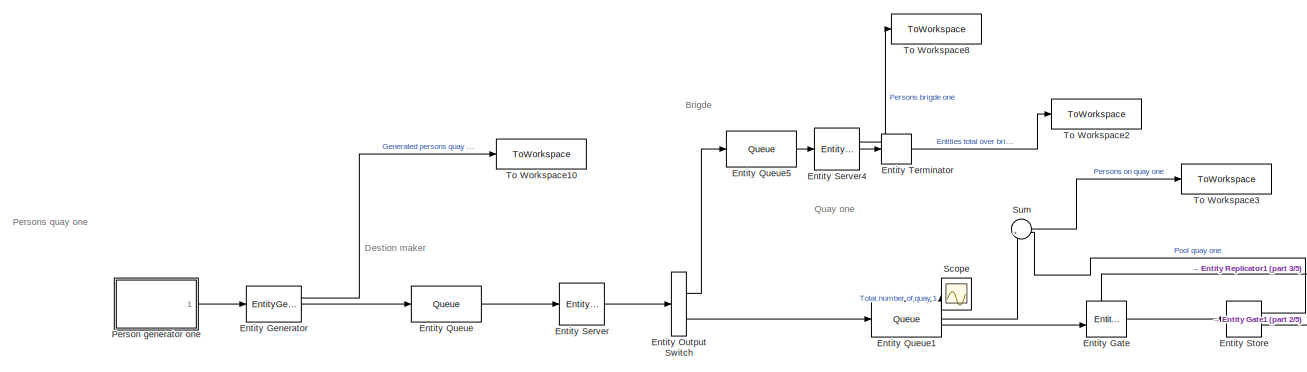
[diagram: root canvas - part 1/5, top left region]
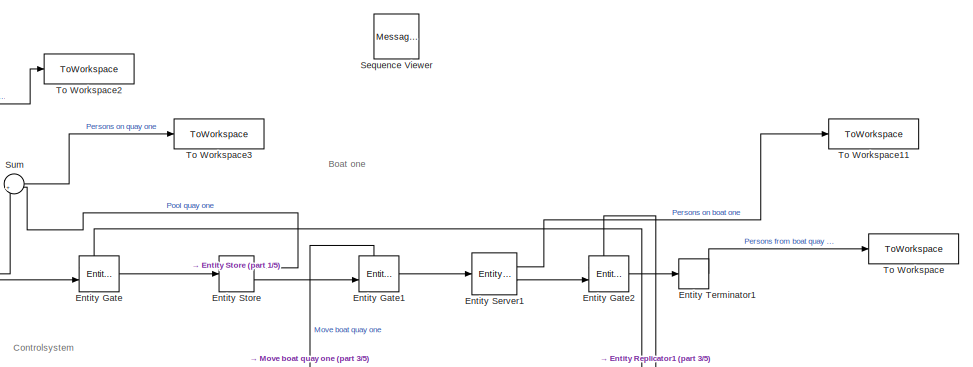
[diagram: root canvas - part 2/5, top right region]
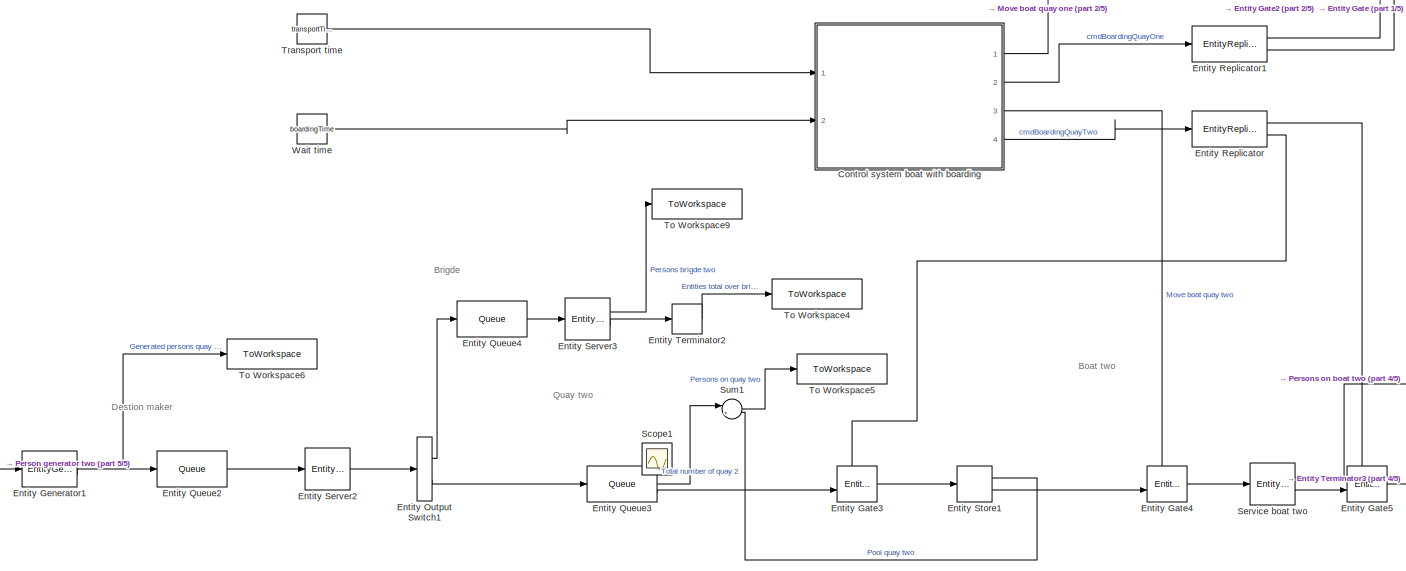
[diagram: root canvas - part 3/5, bottom center region]
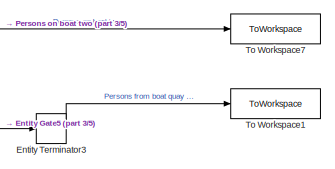
[diagram: root canvas - part 4/5, bottom right region]
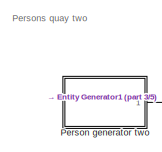
[diagram: root canvas - part 5/5, bottom left region]
MODEL slx_62985c9cc9a4
KIND model
CONFIG AbsTol = auto
CONFIG EnableMultiTasking = off
CONFIG FixedStep = auto
CONFIG MaxStep = auto
CONFIG MinStep = auto
CONFIG RelTol = 1e-3
CONFIG SampleTimeConstraint = Unconstrained
CONFIG Solver = VariableStepAuto
CONFIG SolverName = VariableStepAuto
CONFIG StartTime = 0.0
CONFIG StopTime = 600
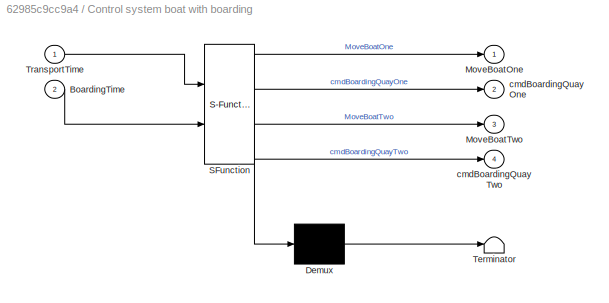
BLOCK [SubSystem] Control system boat with boarding
  ErrorFcn = Stateflow.Translate.translate
  PermitHierarchicalResolution = ExplicitOnly
  Ports = [2, 4]
  RequestExecContextInheritance = off
  SFBlockType = Chart
  TreatAsAtomicUnit = on
BLOCK [Demux] Control system boat with boarding/ Demux 
  Outputs = 1
  Ports = [1, 1]
BLOCK [S-Function] Control system boat with boarding/ SFunction 
  EnableBusSupport = on
  FunctionName = sf_sfun
  OutputPortMessageModes = n,m,m,m,m
  PortCounts = [2 5]
  Ports = [2, 5]
  SFcnIsStateOwnerBlock = off
  SFunctionDeploymentMode = off
  Tag = Stateflow S-Function 7
BLOCK [Terminator] Control system boat with boarding/ Terminator 
BLOCK [Inport] Control system boat with boarding/BoardingTime
  IconDisplay = Port number
  Port = 2
BLOCK [Outport] Control system boat with boarding/MoveBoatOne
  IconDisplay = Port number
BLOCK [Outport] Control system boat with boarding/MoveBoatTwo
  IconDisplay = Port number
  Port = 3
BLOCK [Inport] Control system boat with boarding/TransportTime
  IconDisplay = Port number
BLOCK [Outport] Control system boat with boarding/cmdBoardingQuayOne
  IconDisplay = Port number
  Port = 2
BLOCK [Outport] Control system boat with boarding/cmdBoardingQuayTwo
  IconDisplay = Port number
  Port = 4
BLOCK [EntityGate] Entity Gate
  InputPortMap = u0,u1
  InputPortMessageModes = m,m
  OutputPortMap = o0
  OutputPortMessageModes = m
  Ports = [2, 1]
BLOCK [EntityGate] Entity Gate1
  InputPortMap = u0,u1
  InputPortMessageModes = m,m
  OutputPortMap = o0
  OutputPortMessageModes = m
  Ports = [2, 1]
BLOCK [EntityGate] Entity Gate2
  InputPortMap = u0,u1
  InputPortMessageModes = m,m
  OutputPortMap = o0
  OutputPortMessageModes = m
  Ports = [2, 1]
BLOCK [EntityGate] Entity Gate3
  InputPortMap = u0,u1
  InputPortMessageModes = m,m
  OutputPortMap = o0
  OutputPortMessageModes = m
  Ports = [2, 1]
BLOCK [EntityGate] Entity Gate4
  InputPortMap = u0,u1
  InputPortMessageModes = m,m
  OutputPortMap = o0
  OutputPortMessageModes = m
  Ports = [2, 1]
BLOCK [EntityGate] Entity Gate5
  InputPortMap = u0,u1
  InputPortMessageModes = m,m
  OutputPortMap = o0
  OutputPortMessageModes = m
  Ports = [2, 1]
BLOCK [EntityGenerator] Entity Generator
  AttributeInitialValue = -1|-1
  AttributeName = destion|route
  EntityType = Structured
  EntityTypeName = person
  GenerationMethod = Event-based
  InputPortMap = u0
  InputPortMessageModes = m
  NumberEntitiesDeparted = on
  OutputPortMap = o0,o3
  OutputPortMessageModes = n,m
  Ports = [1, 2]
BLOCK [EntityGenerator] Entity Generator1
  AttributeInitialValue = -1|-1
  AttributeName = destion|route
  EntityType = Structured
  EntityTypeName = person2
  GenerationMethod = Event-based
  InputPortMap = u0
  InputPortMessageModes = m
  NumberEntitiesDeparted = on
  OutputPortMap = o0,o3
  OutputPortMessageModes = n,m
  Ports = [1, 2]
BLOCK [EntityOutputSwitch] Entity Output Switch
  InputPortMap = u1
  InputPortMessageModes = m
  OutputPortMap = o0,o1
  OutputPortMessageModes = m,m
  Ports = [1, 2]
  SwitchAttributeName = route
  SwitchingCriterion = From attribute
BLOCK [EntityOutputSwitch] Entity Output Switch1
  InputPortMap = u1
  InputPortMessageModes = m
  OutputPortMap = o0,o1
  OutputPortMessageModes = m,m
  Ports = [1, 2]
  SwitchAttributeName = route
  SwitchingCriterion = From attribute
BLOCK [Queue] Entity Queue
  Capacity = inf
  InputPortMap = u0
  InputPortMessageModes = m
  OutputPortMap = o5
  OutputPortMessageModes = m
  Ports = [1, 1]
BLOCK [Queue] Entity Queue1
  Capacity = inf
  InputPortMap = u0
  InputPortMessageModes = m
  NumberEntitiesDeparted = on
  NumberEntitiesInBlock = on
  OutputPortMap = o0,o1,o5
  OutputPortMessageModes = n,n,m
  Ports = [1, 3]
BLOCK [Queue] Entity Queue2
  Capacity = inf
  InputPortMap = u0
  InputPortMessageModes = m
  OutputPortMap = o5
  OutputPortMessageModes = m
  Ports = [1, 1]
BLOCK [Queue] Entity Queue3
  Capacity = inf
  InputPortMap = u0
  InputPortMessageModes = m
  NumberEntitiesDeparted = on
  NumberEntitiesInBlock = on
  OutputPortMap = o0,o1,o5
  OutputPortMessageModes = n,n,m
  Ports = [1, 3]
BLOCK [Queue] Entity Queue4
  Capacity = inf
  InputPortMap = u0
  InputPortMessageModes = m
  OutputPortMap = o5
  OutputPortMessageModes = m
  Ports = [1, 1]
BLOCK [Queue] Entity Queue5
  Capacity = inf
  InputPortMap = u0
  InputPortMessageModes = m
  OutputPortMap = o5
  OutputPortMessageModes = m
  Ports = [1, 1]
BLOCK [EntityReplicator] Entity Replicator
  InputPortMap = u0
  InputPortMessageModes = m
  OutputPortMap = o0,o1
  OutputPortMessageModes = m,m
  Ports = [1, 2]
BLOCK [EntityReplicator] Entity Replicator1
  InputPortMap = u0
  InputPortMessageModes = m
  OutputPortMap = o0,o1
  OutputPortMessageModes = m,m
  Ports = [1, 2]
BLOCK [EntityServer] Entity Server
  Capacity = inf
  EntryAction = destion = 0.659;\nentity.destion = rand();\n\nif entity.destion >= destion\n    entity.route = 1;\nelse\n    entity.route = 2;\nend
  InputPortMap = u2
  InputPortMessageModes = m
  OutputPortMap = o9
  OutputPortMessageModes = m
  Ports = [1, 1]
  ServiceTimeValue = 0
BLOCK [EntityServer] Entity Server1
  Capacity = maxPersonBoat
  InputPortMap = u2
  InputPortMessageModes = m
  NumberEntitiesInBlock = on
  OutputPortMap = o1,o9
  OutputPortMessageModes = n,m
  Ports = [1, 2]
  ServiceTimeValue = transportTime
BLOCK [EntityServer] Entity Server2
  Capacity = inf
  EntryAction = destion = 0.659;\nentity.destion = rand();\n\nif entity.destion >= destion\n    entity.route = 1;\nelse\n    entity.route = 2;\nend
  InputPortMap = u2
  InputPortMessageModes = m
  OutputPortMap = o9
  OutputPortMessageModes = m
  Ports = [1, 1]
  ServiceTimeValue = 0
BLOCK [EntityServer] Entity Server3
  Capacity = inf
  InputPortMap = u2
  InputPortMessageModes = m
  NumberEntitiesInBlock = on
  OutputPortMap = o1,o9
  OutputPortMessageModes = n,m
  Ports = [1, 2]
  ServiceTimeValue = transportTimeBrigde
BLOCK [EntityServer] Entity Server4
  Capacity = inf
  InputPortMap = u2
  InputPortMessageModes = m
  NumberEntitiesInBlock = on
  OutputPortMap = o1,o9
  OutputPortMessageModes = n,m
  Ports = [1, 2]
  ServiceTimeValue = transportTimeBrigde
BLOCK [EntityStore] Entity Store
  Capacity = maxPersonBoat
  InputPortMap = u0
  InputPortMessageModes = m
  NumberEntitiesInBlock = on
  OutputPortMap = o1,o4
  OutputPortMessageModes = n,m
  Ports = [1, 2]
BLOCK [EntityStore] Entity Store1
  Capacity = maxPersonBoat
  InputPortMap = u0
  InputPortMessageModes = m
  NumberEntitiesInBlock = on
  OutputPortMap = o1,o4
  OutputPortMessageModes = n,m
  Ports = [1, 2]
BLOCK [EntityTerminator] Entity Terminator
  InputPortMap = u0
  InputPortMessageModes = m
  NumberEntitiesArrived = on
  OutputPortMap = o0
  Ports = [1, 1]
BLOCK [EntityTerminator] Entity Terminator1
  InputPortMap = u0
  InputPortMessageModes = m
  NumberEntitiesArrived = on
  OutputPortMap = o0
  Ports = [1, 1]
BLOCK [EntityTerminator] Entity Terminator2
  InputPortMap = u0
  InputPortMessageModes = m
  NumberEntitiesArrived = on
  OutputPortMap = o0
  Ports = [1, 1]
BLOCK [EntityTerminator] Entity Terminator3
  InputPortMap = u0
  InputPortMessageModes = m
  NumberEntitiesArrived = on
  OutputPortMap = o0
  Ports = [1, 1]
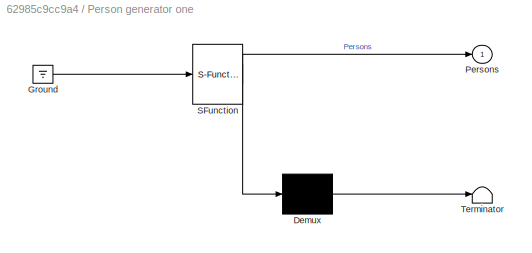
BLOCK [SubSystem] Person generator one
  ErrorFcn = Stateflow.Translate.translate
  PermitHierarchicalResolution = ExplicitOnly
  Ports = [0, 1]
  RequestExecContextInheritance = off
  SFBlockType = Chart
  TreatAsAtomicUnit = on
BLOCK [Demux] Person generator one/ Demux 
  Outputs = 1
  Ports = [1, 1]
BLOCK [Ground] Person generator one/ Ground 
BLOCK [S-Function] Person generator one/ SFunction 
  EnableBusSupport = on
  FunctionName = sf_sfun
  OutputPortMessageModes = n,m
  PortCounts = [1 2]
  Ports = [1, 2]
  SFcnIsStateOwnerBlock = off
  SFunctionDeploymentMode = off
  Tag = Stateflow S-Function 1
BLOCK [Terminator] Person generator one/ Terminator 
BLOCK [Outport] Person generator one/Persons
  IconDisplay = Port number
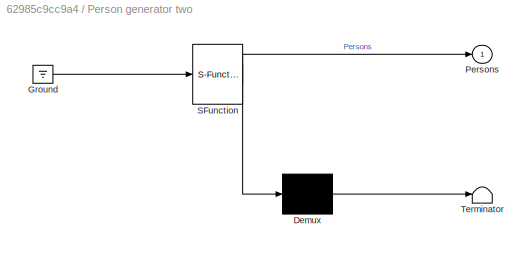
BLOCK [SubSystem] Person generator two
  ErrorFcn = Stateflow.Translate.translate
  PermitHierarchicalResolution = ExplicitOnly
  Ports = [0, 1]
  RequestExecContextInheritance = off
  SFBlockType = Chart
  TreatAsAtomicUnit = on
BLOCK [Demux] Person generator two/ Demux 
  Outputs = 1
  Ports = [1, 1]
BLOCK [Ground] Person generator two/ Ground 
BLOCK [S-Function] Person generator two/ SFunction 
  EnableBusSupport = on
  FunctionName = sf_sfun
  OutputPortMessageModes = n,m
  PortCounts = [1 2]
  Ports = [1, 2]
  SFcnIsStateOwnerBlock = off
  SFunctionDeploymentMode = off
  Tag = Stateflow S-Function 2
BLOCK [Terminator] Person generator two/ Terminator 
BLOCK [Outport] Person generator two/Persons
  IconDisplay = Port number
BLOCK [Scope] Scope
  Floating = off
  NumInputPorts = 1
  Ports = [1]
  ScopeSpecificationString = Simulink.scopes.TimeScopeBlockCfg('CurrentConfiguration', extmgr.ConfigurationSet(extmgr.Configuration('Core','General UI',true),extmgr.Configuration('Core','Source UI',true),extmgr.Configuration('Sources','WiredSimulink',true),extmgr.Configuration('Visuals','Time Domain',true,'SerializedDisplays',{struct('MinYLimReal','-3.375','MaxYLimReal','40.375','YLabelReal','','MinYLimMag','0.00000','MaxYLim...<+1334ch>
BLOCK [Scope] Scope1
  Floating = off
  NumInputPorts = 1
  Ports = [1]
  ScopeSpecificationString = Simulink.scopes.TimeScopeBlockCfg('CurrentConfiguration', extmgr.ConfigurationSet(extmgr.Configuration('Core','General UI',true),extmgr.Configuration('Core','Source UI',true),extmgr.Configuration('Sources','WiredSimulink',true,'DataLoggingVariableName','ScopeData1'),extmgr.Configuration('Visuals','Time Domain',true,'SerializedDisplays',{struct('MinYLimReal','0.00000','MaxYLimReal','10.00000','YLab...<+1383ch>
BLOCK [MessageViewer] Sequence Viewer
BLOCK [EntityServer] Service boat two
  Capacity = maxPersonBoat
  InputPortMap = u2
  InputPortMessageModes = m
  NumberEntitiesInBlock = on
  OutputPortMap = o1,o9
  OutputPortMessageModes = n,m
  Ports = [1, 2]
  ServiceTimeValue = transportTime
BLOCK [Sum] Sum
  IconShape = round
  InputSameDT = off
  Inputs = |++
  OutDataTypeStr = Inherit: Inherit via internal rule
  Ports = [2, 1]
  SaturateOnIntegerOverflow = off
BLOCK [Sum] Sum1
  IconShape = round
  InputSameDT = off
  Inputs = |++
  OutDataTypeStr = Inherit: Inherit via internal rule
  Ports = [2, 1]
  SaturateOnIntegerOverflow = off
BLOCK [ToWorkspace] To Workspace
  FixptAsFi = on
  MaxDataPoints = inf
  Ports = [1]
  SampleTime = -1
  SaveFormat = Timeseries
  VariableName = totbaat1
BLOCK [ToWorkspace] To Workspace1
  FixptAsFi = on
  MaxDataPoints = inf
  Ports = [1]
  SampleTime = -1
  SaveFormat = Timeseries
  VariableName = totbaat2
BLOCK [ToWorkspace] To Workspace10
  FixptAsFi = on
  MaxDataPoints = inf
  Ports = [1]
  SampleTime = -1
  SaveFormat = Timeseries
  VariableName = simout10
BLOCK [ToWorkspace] To Workspace11
  FixptAsFi = on
  MaxDataPoints = inf
  Ports = [1]
  SampleTime = -1
  SaveFormat = Timeseries
  VariableName = baat
BLOCK [ToWorkspace] To Workspace2
  FixptAsFi = on
  MaxDataPoints = inf
  Ports = [1]
  SampleTime = -1
  SaveFormat = Timeseries
  VariableName = totbro
BLOCK [ToWorkspace] To Workspace3
  FixptAsFi = on
  MaxDataPoints = inf
  Ports = [1]
  SampleTime = -1
  SaveFormat = Timeseries
  VariableName = kai
BLOCK [ToWorkspace] To Workspace4
  FixptAsFi = on
  MaxDataPoints = inf
  Ports = [1]
  SampleTime = -1
  SaveFormat = Timeseries
  VariableName = totbro1
BLOCK [ToWorkspace] To Workspace5
  FixptAsFi = on
  MaxDataPoints = inf
  Ports = [1]
  SampleTime = -1
  SaveFormat = Timeseries
  VariableName = kai2
BLOCK [ToWorkspace] To Workspace6
  FixptAsFi = on
  MaxDataPoints = inf
  Ports = [1]
  SampleTime = -1
  SaveFormat = Timeseries
  VariableName = simout6
BLOCK [ToWorkspace] To Workspace7
  FixptAsFi = on
  MaxDataPoints = inf
  Ports = [1]
  SampleTime = -1
  SaveFormat = Timeseries
  VariableName = baat1
BLOCK [ToWorkspace] To Workspace8
  FixptAsFi = on
  MaxDataPoints = inf
  Ports = [1]
  SampleTime = -1
  SaveFormat = Timeseries
  VariableName = bro
BLOCK [ToWorkspace] To Workspace9
  FixptAsFi = on
  MaxDataPoints = inf
  Ports = [1]
  SampleTime = -1
  SaveFormat = Timeseries
  VariableName = bro1
BLOCK [Constant] Transport time
  Value = transportTime
BLOCK [Constant] Wait time
  Value = boardingTime
ANNOTATION (root): Boat one
ANNOTATION (root): Boat two
ANNOTATION (root): Brigde
ANNOTATION (root): Controlsystem
ANNOTATION (root): Destion maker
ANNOTATION (root): Persons quay one
ANNOTATION (root): Persons quay two
ANNOTATION (root): Quay one
ANNOTATION (root): Quay two
LINE Control system boat with boarding:1 -> Entity Gate1:1
LINE Control system boat with boarding:2 -> Entity Replicator1:1
LINE Control system boat with boarding:3 -> Entity Gate4:1
LINE Control system boat with boarding:4 -> Entity Replicator:1
LINE Entity Gate1:1 -> Entity Server1:1
LINE Entity Gate2:1 -> Entity Terminator1:1
LINE Entity Gate3:1 -> Entity Store1:1
LINE Entity Gate4:1 -> Service boat two:1
LINE Entity Gate5:1 -> Entity Terminator3:1
LINE Entity Gate:1 -> Entity Store:1
LINE Entity Generator1:1 -> To Workspace6:1
LINE Entity Generator1:2 -> Entity Queue2:1
LINE Entity Generator:1 -> To Workspace10:1
LINE Entity Generator:2 -> Entity Queue:1
LINE Entity Output Switch1:1 -> Entity Queue4:1
LINE Entity Output Switch1:2 -> Entity Queue3:1
LINE Entity Output Switch:1 -> Entity Queue5:1
LINE Entity Output Switch:2 -> Entity Queue1:1
LINE Entity Queue1:1 -> Scope:1
LINE Entity Queue1:2 -> Sum:1
LINE Entity Queue1:3 -> Entity Gate:2
LINE Entity Queue2:1 -> Entity Server2:1
LINE Entity Queue3:1 -> Scope1:1
LINE Entity Queue3:2 -> Sum1:1
LINE Entity Queue3:3 -> Entity Gate3:2
LINE Entity Queue4:1 -> Entity Server3:1
LINE Entity Queue5:1 -> Entity Server4:1
LINE Entity Queue:1 -> Entity Server:1
LINE Entity Replicator1:1 -> Entity Gate:1
LINE Entity Replicator1:2 -> Entity Gate2:1
LINE Entity Replicator:1 -> Entity Gate5:1
LINE Entity Replicator:2 -> Entity Gate3:1
LINE Entity Server1:1 -> To Workspace11:1
LINE Entity Server1:2 -> Entity Gate2:2
LINE Entity Server2:1 -> Entity Output Switch1:1
LINE Entity Server3:1 -> To Workspace9:1
LINE Entity Server3:2 -> Entity Terminator2:1
LINE Entity Server4:1 -> To Workspace8:1
LINE Entity Server4:2 -> Entity Terminator:1
LINE Entity Server:1 -> Entity Output Switch:1
LINE Entity Store1:1 -> Sum1:2
LINE Entity Store1:2 -> Entity Gate4:2
LINE Entity Store:1 -> Sum:2
LINE Entity Store:2 -> Entity Gate1:2
LINE Entity Terminator1:1 -> To Workspace:1
LINE Entity Terminator2:1 -> To Workspace4:1
LINE Entity Terminator3:1 -> To Workspace1:1
LINE Entity Terminator:1 -> To Workspace2:1
LINE Person generator one:1 -> Entity Generator:1
LINE Person generator two:1 -> Entity Generator1:1
LINE Service boat two:1 -> To Workspace7:1
LINE Service boat two:2 -> Entity Gate5:2
LINE Sum1:1 -> To Workspace5:1
LINE Sum:1 -> To Workspace3:1
LINE Transport time:1 -> Control system boat with boarding:1
LINE Wait time:1 -> Control system boat with boarding:2
CHART Person generator one states=312 transitions=409
  STATE_LABEL 'Hour_24'
  STATE_LABEL 'min_0\n\n'
  STATE_LABEL 'IDLE\nentry:\n  lambda = 4;\n  dt =60* rand();\n  Persons.data=poissrnd(lambda);'
  STATE_LABEL 'Wait'
  STATE_LABEL 'after(dt,sec){send(Persons)}'
  STATE_LABEL 'min_45\n\n'
  STATE_LABEL 'IDLE\nentry:\n  lambda = 4;\n  dt =60* rand();\n  Persons.data=poissrnd(lambda);'
  STATE_LABEL 'Wait'
  STATE_LABEL '{dt=0;}'
  STATE_LABEL 'after(dt,sec){send(Persons)}'
  STATE_LABEL 'min_15\n\n'
  STATE_LABEL 'IDLE\nentry:\n  lambda = 4;\n  dt =60* rand();\n  Persons.data=poissrnd(lambda);'
  STATE_LABEL 'Wait'
  STATE_LABEL '{dt=0;}'
  STATE_LABEL 'after(dt,sec){send(Persons)}'
  STATE_LABEL 'min_30\n\n'
  STATE_LABEL 'IDLE\nentry:\n  lambda = 4;\n  dt =60* rand();\n  Persons.data=poissrnd(lambda);'
  STATE_LABEL 'Wait'
  STATE_LABEL '{dt=0;}'
  STATE_LABEL 'after(dt,sec){send(Persons)}'
  STATE_LABEL 'after(60*15,sec)'
  STATE_LABEL 'after(60*15,sec)'
  STATE_LABEL 'after(60*15,sec)'
  STATE_LABEL 'min_0\n\n'
  STATE_LABEL 'IDLE\nentry:\n  lambda = 4;\n  dt =60* rand();\n  Persons.data=poissrnd(lambda);'
  STATE_LABEL 'Wait'
  STATE_LABEL 'after(dt,sec){send(Persons)}'
  STATE_LABEL 'IDLE\nentry:\n  lambda = 4;\n  dt =60* rand();\n  Persons.data=poissrnd(lambda);'
  STATE_LABEL 'Wait'
  STATE_LABEL 'min_45\n\n'
  STATE_LABEL 'IDLE\nentry:\n  lambda = 4;\n  dt =60* rand();\n  Persons.data=poissrnd(lambda);'
  STATE_LABEL 'Wait'
  STATE_LABEL '{dt=0;}'
  STATE_LABEL 'after(dt,sec){send(Persons)}'
  STATE_LABEL 'IDLE\nentry:\n  lambda = 4;\n  dt =60* rand();\n  Persons.data=poissrnd(lambda);'
  STATE_LABEL 'Wait'
  STATE_LABEL 'min_15\n\n'
  STATE_LABEL 'IDLE\nentry:\n  lambda = 4;\n  dt =60* rand();\n  Persons.data=poissrnd(lambda);'
  STATE_LABEL 'Wait'
  STATE_LABEL '{dt=0;}'
CHART Person generator two states=312 transitions=409
  STATE_LABEL 'Hour_24'
  STATE_LABEL 'min_0\n\n'
  STATE_LABEL 'IDLE\nentry:\n  lambda = 4;\n  dt =60* rand();\n  Persons.data=poissrnd(lambda);'
  STATE_LABEL 'Wait'
  STATE_LABEL 'after(dt,sec){send(Persons)}'
  STATE_LABEL 'min_45\n\n'
  STATE_LABEL 'IDLE\nentry:\n  lambda = 4;\n  dt =60* rand();\n  Persons.data=poissrnd(lambda);'
  STATE_LABEL 'Wait'
  STATE_LABEL '{dt=0;}'
  STATE_LABEL 'after(dt,sec){send(Persons)}'
  STATE_LABEL 'min_15\n\n'
  STATE_LABEL 'IDLE\nentry:\n  lambda = 4;\n  dt =60* rand();\n  Persons.data=poissrnd(lambda);'
  STATE_LABEL 'Wait'
  STATE_LABEL '{dt=0;}'
  STATE_LABEL 'after(dt,sec){send(Persons)}'
  STATE_LABEL 'min_30\n\n'
  STATE_LABEL 'IDLE\nentry:\n  lambda = 4;\n  dt =60* rand();\n  Persons.data=poissrnd(lambda);'
  STATE_LABEL 'Wait'
  STATE_LABEL '{dt=0;}'
  STATE_LABEL 'after(dt,sec){send(Persons)}'
  STATE_LABEL 'after(60*15,sec)'
  STATE_LABEL 'after(60*15,sec)'
  STATE_LABEL 'after(60*15,sec)'
  STATE_LABEL 'min_0\n\n'
  STATE_LABEL 'IDLE\nentry:\n  lambda = 4;\n  dt =60* rand();\n  Persons.data=poissrnd(lambda);'
  STATE_LABEL 'Wait'
  STATE_LABEL 'after(dt,sec){send(Persons)}'
  STATE_LABEL 'IDLE\nentry:\n  lambda = 4;\n  dt =60* rand();\n  Persons.data=poissrnd(lambda);'
  STATE_LABEL 'Wait'
  STATE_LABEL 'min_45\n\n'
  STATE_LABEL 'IDLE\nentry:\n  lambda = 4;\n  dt =60* rand();\n  Persons.data=poissrnd(lambda);'
  STATE_LABEL 'Wait'
  STATE_LABEL '{dt=0;}'
  STATE_LABEL 'after(dt,sec){send(Persons)}'
  STATE_LABEL 'IDLE\nentry:\n  lambda = 4;\n  dt =60* rand();\n  Persons.data=poissrnd(lambda);'
  STATE_LABEL 'Wait'
  STATE_LABEL 'min_15\n\n'
  STATE_LABEL 'IDLE\nentry:\n  lambda = 4;\n  dt =60* rand();\n  Persons.data=poissrnd(lambda);'
  STATE_LABEL 'Wait'
  STATE_LABEL '{dt=0;}'
CHART Control system boat with boarding states=7 transitions=7
  STATE_LABEL 'ControlSystemBoat'
  STATE_LABEL 'UnboardingQuayOne\nentry:\n cmdBoardingQuayOne.data = 1;\n send(cmdBoardingQuayOne);\n'
  STATE_LABEL 'MoveBoatOne\nentry:\n MoveBoatOne.data=1;\n send(MoveBoatOne);\n'
  STATE_LABEL 'BoardingQuayOne\nentry:\n cmdBoardingQuayOne.data=1;\n send(cmdBoardingQuayOne);'
  STATE_LABEL 'UnboardingQuayTwo\nentry:\n cmdBoardingQuayTwo.data=1;\n send(cmdBoardingQuayTwo);'
  STATE_LABEL 'BoardingQuayTwo\nentry:\n cmdBoardingQuayTwo.data=1;\n send(cmdBoardingQuayTwo);\n'
  STATE_LABEL 'MoveBoatQuayTwo\nentry:\n MoveBoatTwo.data=1;\n send(MoveBoatTwo);\n'
  STATE_LABEL '{\n boardingTime=BoardingTime;\n transportTime=TransportTime;\n}'
  STATE_LABEL 'after(transportTime,sec){MoveBoatOne.data=0; send(MoveBoatOne)}'
  STATE_LABEL 'after(boardingTime,sec){cmdBoardingQuayOne.data=0; send(cmdBoardingQuayOne)}'
  STATE_LABEL 'after(boardingTime,sec)'
  STATE_LABEL 'after(boardingTime,sec)'
  STATE_LABEL 'after(transportTime,sec){MoveBoatTwo.data=0; send(MoveBoatTwo)}'
  STATE_LABEL 'after(boardingTime,sec){cmdBoardingQuayTwo.data=0; send(cmdBoardingQuayTwo)}'
  STATE_LABEL 'UnboardingQuayOne\nentry:\n cmdBoardingQuayOne.data = 1;\n send(cmdBoardingQuayOne);\n'
  STATE_LABEL 'MoveBoatOne\nentry:\n MoveBoatOne.data=1;\n send(MoveBoatOne);\n'
  STATE_LABEL 'BoardingQuayOne\nentry:\n cmdBoardingQuayOne.data=1;\n send(cmdBoardingQuayOne);'
  STATE_LABEL 'UnboardingQuayTwo\nentry:\n cmdBoardingQuayTwo.data=1;\n send(cmdBoardingQuayTwo);'
  STATE_LABEL 'BoardingQuayTwo\nentry:\n cmdBoardingQuayTwo.data=1;\n send(cmdBoardingQuayTwo);\n'
  STATE_LABEL 'MoveBoatQuayTwo\nentry:\n MoveBoatTwo.data=1;\n send(MoveBoatTwo);\n'
